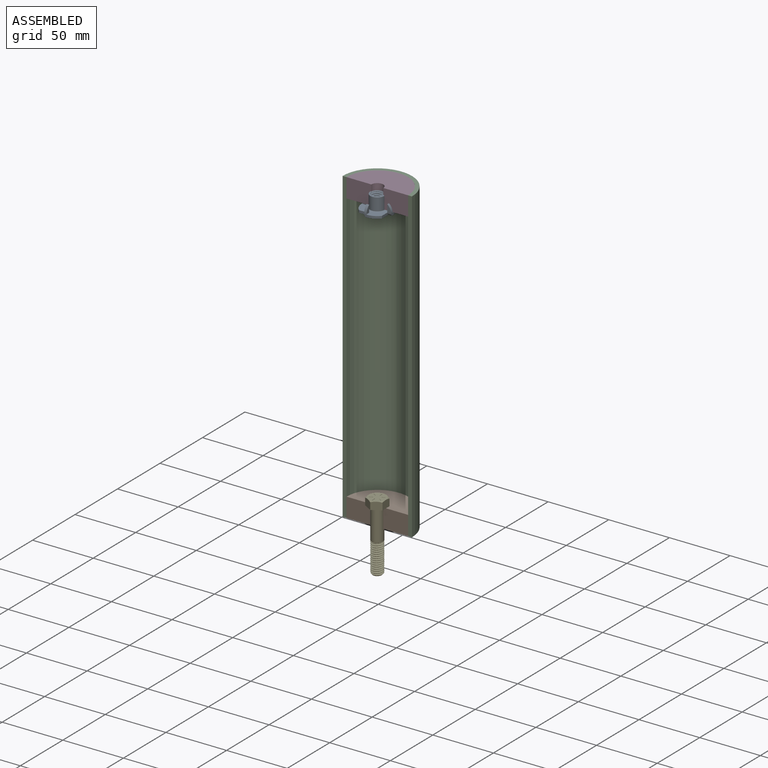
[diagram: assembled view]
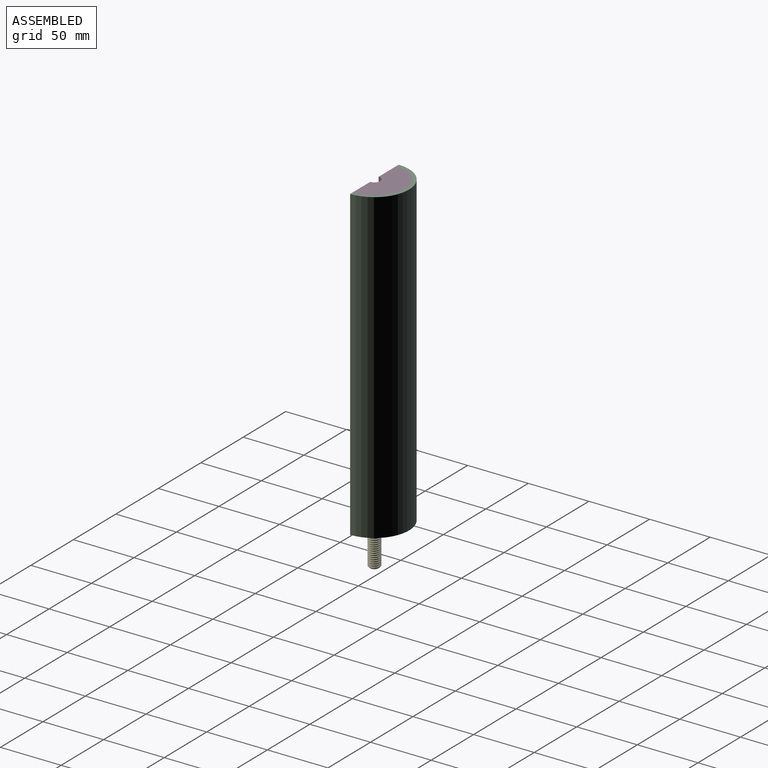
[diagram: assembled view, second angle]
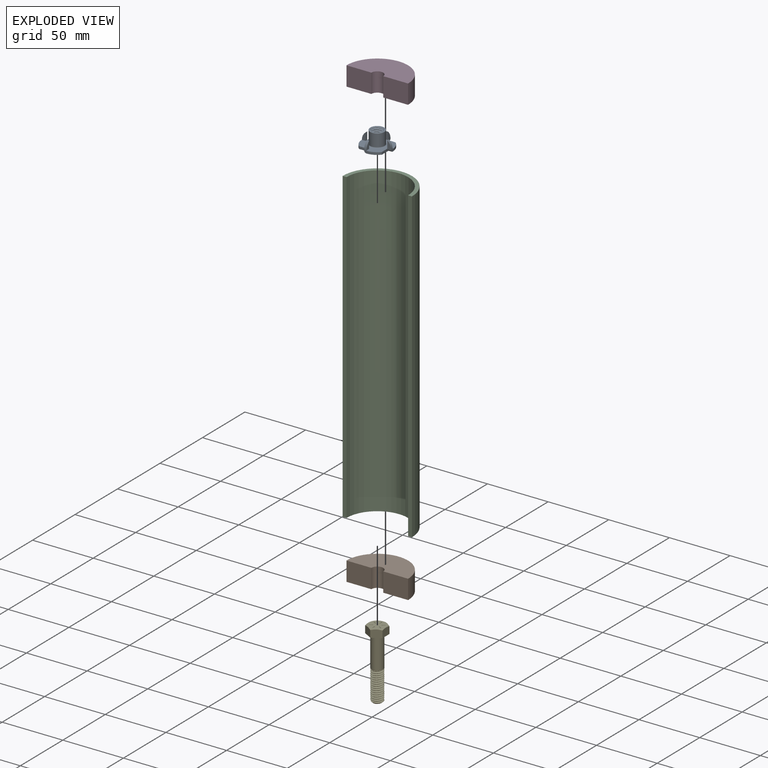
[diagram: exploded view]
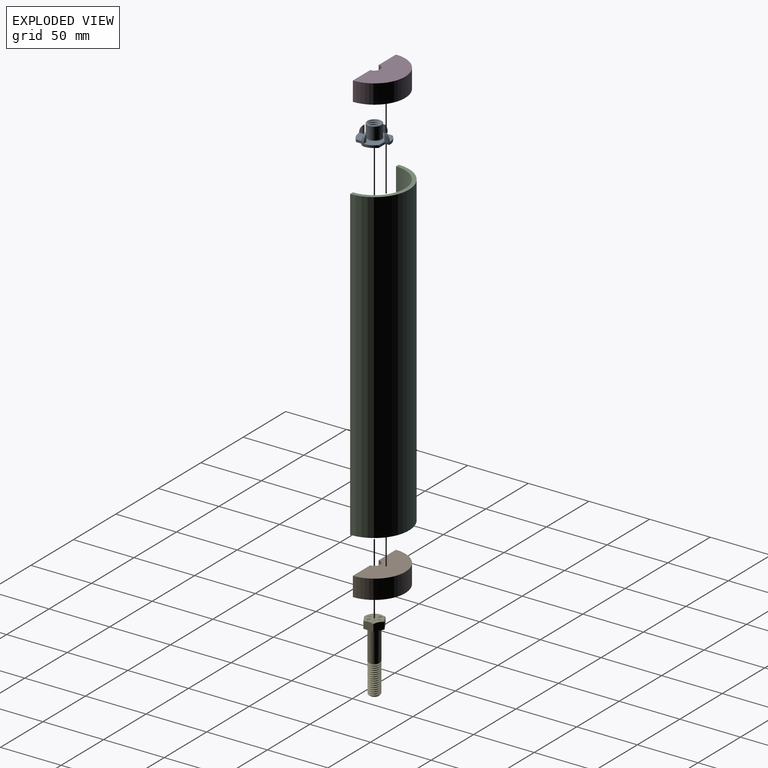
[diagram: exploded view, second angle]
ASSEMBLY  parts=5 mates=7
PART A: 53 faces, bbox 25.4x13.6x25.4 mm
  f0: torus R=6.41mm, axis (0,1,0), area 30.1mm2, adj f3,f8
  f1: torus R=5.4mm, axis (0,1,0), area 28.3mm2, adj f3,f46
  f2: torus R=6.77mm, axis (0,1,0), area 108.8mm2, adj f7,f15,f52
  f3: cylinder r=5.91mm len=11.81mm, axis (0,-1,0), area 374.6mm2, adj f0,f1
  f4: cone r=3.73mm half-angle=45deg, axis (0,1,0), area 26.9mm2, adj f5,f6,f46,f50,f51,f52
  f5: cone r=3.73mm half-angle=45deg, axis (0,1,0), area 0.1mm2, adj f4,f6,f50
  f6: cylinder r=3.73mm len=8.88mm, axis (0,1,0), area 26mm2, adj f4,f5,f7,f50,f51
  f7: cone r=4.76mm half-angle=45deg, axis (0,-1,0), area 20.1mm2, adj f2,f6,f50,f51
  f8: plane 25.39x25.38mm, normal (0,1,0), area 302.8mm2, adj f0,f9,f10,f11,f12,f13,f14,f16
  f9: plane 2.01x0.03mm, normal (0,0,-1), area 0.1mm2, adj f8,f15,f21,f42
  f10: plane 2.01x0.03mm, normal (1,0,0), area 0.1mm2, adj f8,f15,f20,f36
  f11: plane 2.01x0.03mm, normal (0,0,1), area 0.1mm2, adj f8,f15,f19,f30
  f12: plane 2.01x0.03mm, normal (-1,0,0), area 0.1mm2, adj f8,f15,f18,f23
  f13: cylinder r=12.7mm len=9.61mm, axis (0,-1,0), area 21.9mm2, adj f8,f15,f21,f34,f38,f47
  f14: cylinder r=12.7mm len=9.61mm, axis (0,-1,0), area 21.9mm2, adj f8,f15,f18,f40
  f15: plane 25.4x25.4mm, normal (0,-1,0), area 292.4mm2, adj f2,f9,f10,f11,f12,f13,f14,f16
  f16: cylinder r=12.7mm len=9.61mm, axis (0,-1,0), area 21.9mm2, adj f8,f15,f20,f28,f32,f48
  f17: cylinder r=12.7mm len=9.61mm, axis (0,-1,0), area 21.9mm2, adj f8,f15,f19,f22,f25,f49
  f18: plane 8.31x2.01mm, normal (0,0,1), area 16.7mm2, adj f8,f12,f14,f15
  f19: plane 8.31x2.01mm, normal (1,0,0), area 16.7mm2, adj f8,f11,f15,f17
  f20: plane 8.31x2.01mm, normal (0,0,-1), area 16.7mm2, adj f8,f10,f15,f16
  f21: plane 8.31x2.01mm, normal (-1,0,0), area 16.7mm2, adj f8,f9,f13,f15
  f22: plane 2.01x2.01mm, normal (0,0,1), area 3.2mm2, adj f17,f24,f25
  f23: plane 8.31x2.51mm, normal (0,0,-1), area 15.9mm2, adj f8,f12,f24,f25,f26,f27,f49
  f24: cylinder r=2.01mm len=3.07mm, axis (0,0,1), area 9.7mm2, adj f15,f22,f23,f26
  f25: cylinder r=8mm len=6.3mm, axis (1,0,0), area 14.6mm2, adj f17,f22,f23,f26,f27,f49
  f26: plane 6.3x3.07mm, normal (-1,0,0), area 13.5mm2, adj f23,f24,f25
  f27: plane 5.8x3.05mm, normal (1,0,0), area 11.9mm2, adj f23,f25,f49
  f28: plane 2.01x2.01mm, normal (1,0,0), area 3.2mm2, adj f16,f29,f32
  f29: cylinder r=2.01mm len=3.07mm, axis (1,0,0), area 9.7mm2, adj f15,f28,f30,f31
  f30: plane 8.31x2.51mm, normal (-1,0,0), area 15.9mm2, adj f8,f11,f29,f31,f32,f33,f48
  f31: plane 6.3x3.07mm, normal (0,0,1), area 13.5mm2, adj f29,f30,f32
  f32: cylinder r=8mm len=6.3mm, axis (0,0,-1), area 14.6mm2, adj f16,f28,f30,f31,f33,f48
  f33: plane 5.8x3.05mm, normal (0,0,-1), area 11.9mm2, adj f30,f32,f48
  f34: plane 2.01x2.01mm, normal (0,0,-1), area 3.2mm2, adj f13,f35,f38
  f35: cylinder r=2.01mm len=3.07mm, axis (0,0,-1), area 9.7mm2, adj f15,f34,f36,f37
  f36: plane 8.31x2.51mm, normal (0,0,1), area 15.9mm2, adj f8,f10,f35,f37,f38,f39,f47
  f37: plane 6.3x3.07mm, normal (1,0,0), area 13.5mm2, adj f35,f36,f38
  f38: cylinder r=8mm len=6.3mm, axis (-1,0,0), area 14.6mm2, adj f13,f34,f36,f37,f39,f47
  f39: plane 5.8x3.05mm, normal (-1,0,0), area 11.9mm2, adj f36,f38,f47
  f40: plane 2.01x2.01mm, normal (-1,0,0), area 3.2mm2, adj f14,f41,f44
  f41: cylinder r=2.01mm len=3.07mm, axis (-1,0,0), area 9.7mm2, adj f15,f40,f42,f43
  f42: plane 8.31x2.01mm, normal (1,0,0), area 15.8mm2, adj f9,f41,f43,f44,f45
  f43: plane 6.3x3.07mm, normal (0,0,-1), area 13.5mm2, adj f41,f42,f44
  f44: cylinder r=8mm len=6.3mm, axis (0,0,1), area 14.6mm2, adj f40,f42,f43,f45
  f45: plane 6.3x3.07mm, normal (0,0,1), area 13.5mm2, adj f8,f42,f44
  f46: plane 10.81x10.81mm, normal (0,1,0), area 15.6mm2, adj f1,f4
  f47: cylinder r=0.5mm len=3.07mm, axis (0,0,1), area 2.4mm2, adj f8,f13,f36,f38,f39
  f48: cylinder r=0.5mm len=3.07mm, axis (-1,0,0), area 2.4mm2, adj f8,f16,f30,f32,f33
  f49: cylinder r=0.5mm len=3.07mm, axis (0,0,1), area 2.4mm2, adj f8,f17,f23,f25,f27
  f50: bspline ~11.76x9.53mm, area 198.2mm2, adj f4,f5,f6,f7,f52
  f51: bspline ~11.76x9.53mm, area 199.8mm2, adj f4,f6,f7,f52
  f52: cylinder r=4.76mm len=10.94mm, axis (0,1,0), area 41.1mm2, adj f2,f4,f50,f51
PART B: 6 faces, bbox 50.8x25.4x15.9 mm
  f0: cylinder r=25.4mm len=50.8mm, axis (0,0,-1), area 1266.8mm2, adj f1,f2,f4,f5
  f1: plane 50.8x25.4mm, normal (0,0,1), area 975.3mm2, adj f0,f3,f4,f5
  f2: plane 50.8x25.4mm, normal (0,0,-1), area 975.3mm2, adj f0,f3,f4,f5
  f3: cylinder r=4.93mm len=15.88mm, axis (0,0,1), area 245.8mm2, adj f1,f2,f4,f5
  f4: plane 20.47x15.88mm, normal (0,-1,0), area 325mm2, adj f0,f1,f2,f3
  f5: plane 20.47x15.88mm, normal (0,-1,0), area 325mm2, adj f0,f1,f2,f3
PART C: 6 faces, bbox 57.2x28.6x254 mm
  f0: cylinder r=25.4mm len=254mm, axis (0,0,-1), area 20268.3mm2, adj f2,f3,f4,f5
  f1: cylinder r=28.57mm len=254mm, axis (0,0,-1), area 22801.8mm2, adj f2,f3,f4,f5
  f2: plane 57.15x28.58mm, normal (0,0,1), area 269.2mm2, adj f0,f1,f4,f5
  f3: plane 57.15x28.58mm, normal (0,0,-1), area 269.2mm2, adj f0,f1,f4,f5
  f4: plane 254x3.18mm, normal (0,-1,0), area 806.5mm2, adj f0,f1,f2,f3
  f5: plane 254x3.18mm, normal (0,-1,0), area 806.5mm2, adj f0,f1,f2,f3
PART D: same geometry as B
PART E: 67 faces, bbox 58.3x17.2x17.2 mm
  f0: cylinder r=0.21mm len=0.4mm, axis (-1,0,0), area 0.2mm2, adj f40,f64,f65,f66
  f1: cylinder r=0.21mm len=0.4mm, axis (-1,0,0), area 0.2mm2, adj f40,f60,f61,f62
  f2: cylinder r=0.21mm len=0.4mm, axis (-1,0,0), area 0.2mm2, adj f40,f50,f52,f53
  f3: cylinder r=0.21mm len=0.4mm, axis (-1,0,0), area 0.2mm2, adj f40,f46,f48,f49
  f4: cone r=1000mm half-angle=45deg, axis (-1,0,0), area 20.1mm2, adj f22,f29,f30,f31
  f5: cone r=3.57mm half-angle=45deg, axis (-1,0,0), area 24mm2, adj f7,f29,f30,f31,f32
  f6: cylinder r=4.76mm len=9.53mm, axis (1,0,0), area 5.9mm2, adj f7,f8,f30,f31
  f7: cylinder r=4.76mm len=3.37mm, axis (1,0,0), area 0.4mm2, adj f5,f6,f31
  f8: cylinder r=4.76mm len=9.53mm, axis (1,0,0), area 5.9mm2, adj f6,f9,f30,f31
  f9: cylinder r=4.76mm len=9.53mm, axis (1,0,0), area 5.9mm2, adj f8,f10,f30,f31
  f10: cylinder r=4.76mm len=9.53mm, axis (1,0,0), area 5.9mm2, adj f9,f11,f30,f31
  f11: cylinder r=4.76mm len=9.53mm, axis (1,0,0), area 5.9mm2, adj f10,f12,f30,f31
  f12: cylinder r=4.76mm len=9.53mm, axis (1,0,0), area 5.9mm2, adj f11,f13,f30,f31
  f13: cylinder r=4.76mm len=9.53mm, axis (1,0,0), area 5.9mm2, adj f12,f14,f30,f31
  f14: cylinder r=4.76mm len=9.53mm, axis (1,0,0), area 5.9mm2, adj f13,f15,f30,f31
  f15: cylinder r=4.76mm len=9.53mm, axis (1,0,0), area 5.9mm2, adj f14,f16,f30,f31
  f16: cylinder r=4.76mm len=9.53mm, axis (1,0,0), area 5.9mm2, adj f15,f17,f30,f31
  f17: cylinder r=4.76mm len=9.53mm, axis (1,0,0), area 5.9mm2, adj f16,f18,f30,f31
  f18: cylinder r=4.76mm len=9.53mm, axis (1,0,0), area 5.9mm2, adj f17,f19,f30,f31
  f19: cylinder r=4.76mm len=9.53mm, axis (1,0,0), area 5.9mm2, adj f18,f20,f30,f31
  f20: cylinder r=4.76mm len=9.53mm, axis (1,0,0), area 5.9mm2, adj f19,f21,f30,f31
  f21: cylinder r=4.76mm len=9.53mm, axis (1,0,0), area 5.9mm2, adj f20,f22,f30,f31
  f22: cylinder r=4.76mm len=25.8mm, axis (1,0,0), area 761.2mm2, adj f4,f21,f30,f31,f33
  f23: plane 8.93x7.03mm, normal (0,0,1), area 50.6mm2, adj f24,f28,f33,f34,f39
  f24: plane 7.82x7.03mm, normal (0,0.87,0.5), area 50.6mm2, adj f23,f25,f33,f38,f39
  f25: plane 7.82x7.03mm, normal (0,0.87,-0.5), area 50.6mm2, adj f24,f26,f33,f37,f38
  f26: plane 8.93x7.03mm, normal (0,0,-1), area 50.6mm2, adj f25,f27,f33,f36,f37
  f27: plane 7.82x7.03mm, normal (0,-0.87,-0.5), area 50.6mm2, adj f26,f28,f33,f35,f36
  f28: plane 7.82x7.03mm, normal (0,-0.87,0.5), area 50.6mm2, adj f23,f27,f33,f34,f35
  f29: cylinder r=3.73mm len=24.21mm, axis (1,0,0), area 71.1mm2, adj f4,f5,f30,f31
  f30: bspline ~25.6x9.53mm, area 485.7mm2, adj f4,f5,f6,f8,f9,f10,f11,f12
  f31: bspline ~26.43x8.92mm, area 485.9mm2, adj f4,f5,f6,f7,f8,f9,f10,f11
  f32: plane 7.14x7.14mm, normal (1,0,0), area 40.1mm2, adj f5
  f33: plane 16.5x14.29mm, normal (1,0,0), area 105.5mm2, adj f22,f23,f24,f25,f26,f27,f28
  f34: cone r=7.14mm half-angle=60deg, axis (1,0,0), area 5mm2, adj f23,f28,f40
  f35: cone r=7.14mm half-angle=60deg, axis (1,0,0), area 5mm2, adj f27,f28,f40
  f36: cone r=7.14mm half-angle=60deg, axis (1,0,0), area 5mm2, adj f26,f27,f40
  f37: cone r=7.14mm half-angle=60deg, axis (1,0,0), area 5mm2, adj f25,f26,f40
  f38: cone r=7.14mm half-angle=60deg, axis (1,0,0), area 5mm2, adj f24,f25,f40
  f39: cone r=7.14mm half-angle=60deg, axis (1,0,0), area 5mm2, adj f23,f24,f40
  f40: plane 14.29x14.29mm, normal (-1,0,0), area 153.2mm2, adj f0,f1,f2,f3,f34,f35,f36,f37
  f41: cylinder r=0.21mm len=0.43mm, axis (-1,0,0), area 0.2mm2, adj f40,f42,f44,f45
  f42: plane 2.43x0.25mm, normal (0,0,-1), area 0.6mm2, adj f40,f41,f43,f45
  f43: cylinder r=0.21mm len=0.43mm, axis (-1,0,0), area 0.2mm2, adj f40,f42,f44,f45
  f44: plane 2.43x0.25mm, normal (0,0,1), area 0.6mm2, adj f40,f41,f43,f45
  f45: plane 2.86x0.43mm, normal (-1,0,0), area 1.2mm2, adj f41,f42,f43,f44
  f46: plane 2.1x1.21mm, normal (0,0.87,-0.5), area 0.6mm2, adj f3,f40,f47,f49
  f47: cylinder r=0.21mm len=0.4mm, axis (-1,0,0), area 0.2mm2, adj f40,f46,f48,f49
  f48: plane 2.1x1.21mm, normal (0,-0.87,0.5), area 0.6mm2, adj f3,f40,f47,f49
  f49: plane 2.53x1.64mm, normal (-1,0,0), area 1.2mm2, adj f3,f46,f47,f48
  f50: plane 2.1x1.21mm, normal (0,0.87,0.5), area 0.6mm2, adj f2,f40,f51,f53
  f51: cylinder r=0.21mm len=0.4mm, axis (-1,0,0), area 0.2mm2, adj f40,f50,f52,f53
  f52: plane 2.1x1.21mm, normal (0,-0.87,-0.5), area 0.6mm2, adj f2,f40,f51,f53
  f53: plane 2.53x1.64mm, normal (-1,0,0), area 1.2mm2, adj f2,f50,f51,f52
  f54: cylinder r=0.21mm len=0.43mm, axis (-1,0,0), area 0.2mm2, adj f40,f55,f57,f58
  f55: plane 2.43x0.25mm, normal (0,0,1), area 0.6mm2, adj f40,f54,f56,f58
  f56: cylinder r=0.21mm len=0.43mm, axis (-1,0,0), area 0.2mm2, adj f40,f55,f57,f58
  f57: plane 2.43x0.25mm, normal (0,0,-1), area 0.6mm2, adj f40,f54,f56,f58
  f58: plane 2.86x0.43mm, normal (-1,0,0), area 1.2mm2, adj f54,f55,f56,f57
  f59: cylinder r=0.21mm len=0.4mm, axis (-1,0,0), area 0.2mm2, adj f40,f60,f61,f62
  f60: plane 2.1x1.21mm, normal (0,-0.87,0.5), area 0.6mm2, adj f1,f40,f59,f62
  f61: plane 2.1x1.21mm, normal (0,0.87,-0.5), area 0.6mm2, adj f1,f40,f59,f62
  f62: plane 2.53x1.64mm, normal (-1,0,0), area 1.2mm2, adj f1,f59,f60,f61
  f63: cylinder r=0.21mm len=0.4mm, axis (-1,0,0), area 0.2mm2, adj f40,f64,f65,f66
  f64: plane 2.1x1.21mm, normal (0,-0.87,-0.5), area 0.6mm2, adj f0,f40,f63,f66
  f65: plane 2.1x1.21mm, normal (0,0.87,0.5), area 0.6mm2, adj f0,f40,f63,f66
  f66: plane 2.53x1.64mm, normal (-1,0,0), area 1.2mm2, adj f0,f63,f64,f65
PLACE A rot(axis=(1,0,0),90deg) t=(-105.72,14.27,512.94)mm
PLACE B rot(axis=(0,1,0),0deg) t=(-105.72,14.27,277.32)mm
PLACE C rot(axis=(0,1,0),0deg) t=(-105.72,14.27,277.32)mm fixed
PLACE D rot(axis=(0,1,0.06),0deg) t=(-105.72,14.27,515.45)mm fixed
PLACE E rot(axis=(0,1,0),90deg) t=(-105.72,14.27,270.97)mm
MATE slider B.f0 <-> E.f5  axis (0,0,-1) through (-105.72,14.27,277.32)mm
MATE planar D.f2 <-> A.f0  axis (0,0,-1) through (-105.72,25.39,515.45)mm
MATE slider A.f0 <-> D.f3  axis (0,0,-1) through (-105.72,14.27,520.5)mm
MATE slider B.f0 <-> C.f0  axis (0,0,-1) through (-105.72,14.27,285.26)mm
MATE planar D.f1 <-> C.f0  axis (0,0,1) through (-105.72,25.39,531.32)mm
MATE planar E.f33 <-> B.f1  axis (0,0,-1) through (-112.87,14.27,293.2)mm
MATE planar C.f3 <-> B.f2  axis (0,0,-1) through (-105.72,31.47,277.32)mm
